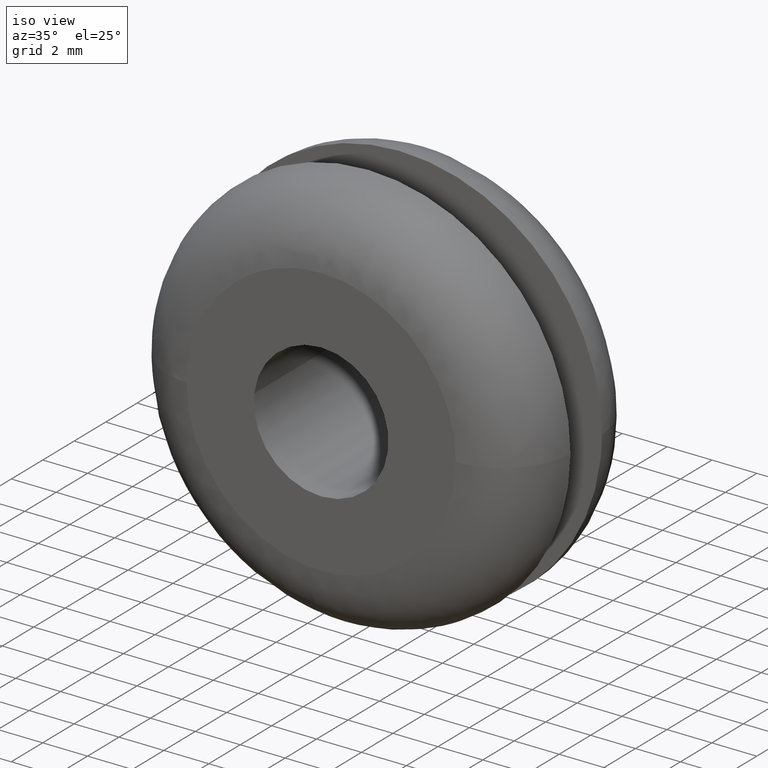
[diagram: clean part render]
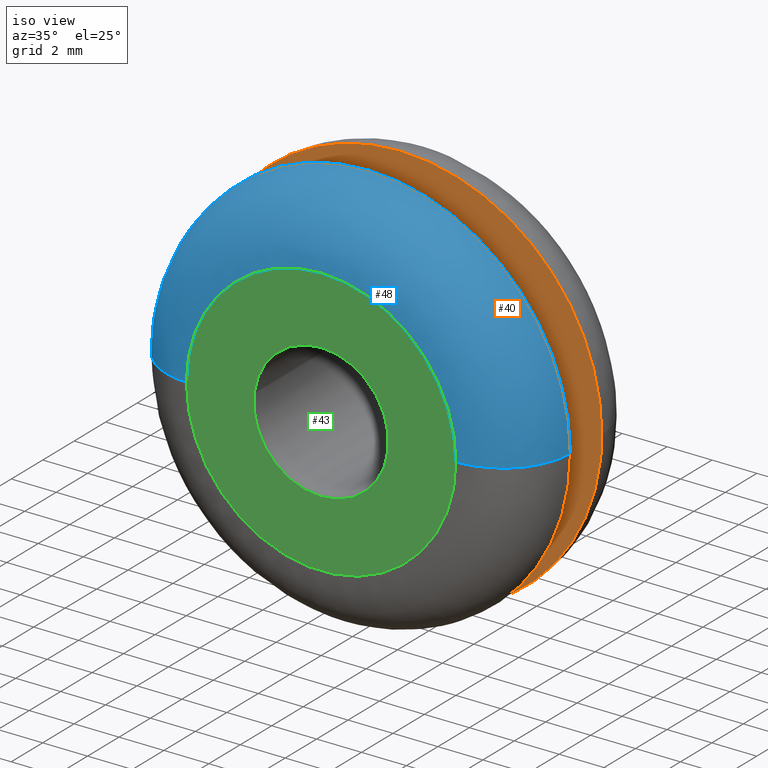
[diagram: same view with three faces highlighted in distinct colors, each labeled with its STEP entity id]
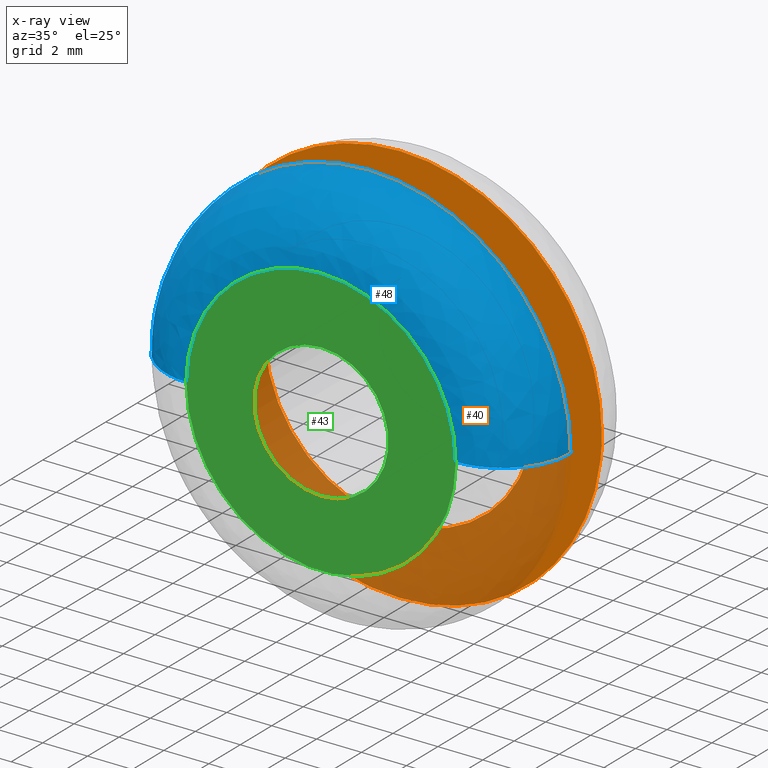
[diagram: x-ray of the same camera — body ghosted, the three highlighted faces saturated]
A machine part, iso view with three faces highlighted in distinct colors.
The next image is the same camera in x-ray (body ghosted, the three faces saturated) — at least one of them is partly hidden behind the body in this view.
Their STEP definitions:

[orange] entity #40 — the highlighted planar face has unit normal (0, 1, 0).
#40=ADVANCED_FACE('',(#53,#54),#52,.F.);
#52=PLANE('',#179);
#53=FACE_OUTER_BOUND('',#180,.T.);
#54=FACE_BOUND('',#181,.T.);
#176=CARTESIAN_POINT('',(-1.09106769926E+001,5.00000000000E+000,-1.08000000000E+001));
#177=DIRECTION('',(0.00000000000E+000,1.00000000000E+000,0.00000000000E+000));
#178=DIRECTION('',(0.00000000000E+000,0.00000000000E+000,1.00000000000E+000));
#179=AXIS2_PLACEMENT_3D('',#176,#177,#178);
#180=EDGE_LOOP('',(#324,#325,#326,#327,#328));
#181=EDGE_LOOP('',(#329,#330,#331));
#324=ORIENTED_EDGE('',*,*,#398,.T.);
#325=ORIENTED_EDGE('',*,*,#399,.T.);
#326=ORIENTED_EDGE('',*,*,#400,.T.);
#327=ORIENTED_EDGE('',*,*,#401,.T.);
#328=ORIENTED_EDGE('',*,*,#402,.T.);
#329=ORIENTED_EDGE('',*,*,#403,.F.);
#330=ORIENTED_EDGE('',*,*,#404,.F.);
#331=ORIENTED_EDGE('',*,*,#405,.F.);
#398=EDGE_CURVE('',#435,#436,#437,.T.);
#399=EDGE_CURVE('',#436,#443,#444,.T.);
#400=EDGE_CURVE('',#443,#450,#451,.T.);
#401=EDGE_CURVE('',#450,#457,#458,.T.);
#402=EDGE_CURVE('',#457,#435,#464,.T.);
#403=EDGE_CURVE('',#470,#471,#472,.T.);
#404=EDGE_CURVE('',#478,#470,#479,.T.);
#405=EDGE_CURVE('',#471,#478,#485,.T.);
#435=VERTEX_POINT('',#686);
#436=VERTEX_POINT('',#687);
#437=CIRCLE('',#691,8.99999999999E+000);
#443=VERTEX_POINT('',#692);
#444=CIRCLE('',#696,8.99999999999E+000);
#450=VERTEX_POINT('',#697);
#451=CIRCLE('',#701,8.99999999999E+000);
#457=VERTEX_POINT('',#702);
#458=CIRCLE('',#706,8.99999999999E+000);
#464=CIRCLE('',#710,8.99999999999E+000);
#470=VERTEX_POINT('',#711);
#471=VERTEX_POINT('',#712);
#472=CIRCLE('',#716,6.00000000000E+000);
#478=VERTEX_POINT('',#717);
#479=CIRCLE('',#721,6.00000000000E+000);
#485=CIRCLE('',#725,6.00000000000E+000);
#686=CARTESIAN_POINT('',(0.00000000000E+000,5.00000000000E+000,-9.00000000000E+000));
#687=CARTESIAN_POINT('',(8.93980539481E+000,4.99999413509E+000,-1.03917250863E+000));
#688=CARTESIAN_POINT('',(-4.23927559723E-012,4.99999706754E+000,-1.01669783703E-011));
#689=DIRECTION('',(-3.65897112517E-007,-1.00000000000E+000,-3.25828545577E-007));
#690=DIRECTION('',(-4.71030621915E-013,-3.25828545577E-007,1.00000000000E+000));
#691=AXIS2_PLACEMENT_3D('',#688,#689,#690);
#692=CARTESIAN_POINT('',(8.99999999998E+000,4.99999445622E+000,9.78850653478E-006));
#693=CARTESIAN_POINT('',(-2.05080397109E-012,4.99999706754E+000,1.00102148792E-011));
#694=DIRECTION('',(-2.90147797382E-007,-1.00000000000E+000,3.25828545244E-007));
#695=DIRECTION('',(-9.93311710536E-001,3.25828545675E-007,1.15463612071E-001));
#696=AXIS2_PLACEMENT_3D('',#693,#694,#695);
#697=CARTESIAN_POINT('',(0.00000000000E+000,5.00000000000E+000,9.00000000000E+000));
#698=CARTESIAN_POINT('',(-2.05080397109E-012,4.99999706754E+000,1.00102148792E-011));
#699=DIRECTION('',(-2.90147797382E-007,-1.00000000000E+000,3.25828545244E-007));
#700=DIRECTION('',(-9.93311710536E-001,3.25828545675E-007,1.15463612071E-001));
#701=AXIS2_PLACEMENT_3D('',#698,#699,#700);
#702=CARTESIAN_POINT('',(-8.99999999999E+000,4.99999411331E+000,3.79724600000E-008));
#703=CARTESIAN_POINT('',(2.84927637040E-012,4.99999705666E+000,8.70414851306E-012));
#704=DIRECTION('',(3.27038295842E-007,-1.00000000000E+000,3.27038294520E-007));
#705=DIRECTION('',(3.16586263378E-013,-3.27038294520E-007,-1.00000000000E+000));
#706=AXIS2_PLACEMENT_3D('',#703,#704,#705);
#707=CARTESIAN_POINT('',(2.85194090566E-012,4.99999705666E+000,-8.70503669148E-012));
#708=DIRECTION('',(3.27038292942E-007,-1.00000000000E+000,-3.27038294710E-007));
#709=DIRECTION('',(1.00000000000E+000,3.27038294322E-007,-4.22012944853E-009));
#710=AXIS2_PLACEMENT_3D('',#707,#708,#709);
#711=CARTESIAN_POINT('',(-5.95805741716E+000,5.00000000000E+000,7.08203229113E-001));
#712=CARTESIAN_POINT('',(-2.99760216649E-015,5.00000000000E+000,-5.99999999999E+000));
#713=CARTESIAN_POINT('',(2.10320649785E-012,5.00000000000E+000,4.62696547743E-012));
#714=DIRECTION('',(-8.03066684532E-017,-1.00000000000E+000,-6.75617347872E-016));
#715=DIRECTION('',(-3.50677820116E-013,6.75617347873E-016,-1.00000000000E+000));
#716=AXIS2_PLACEMENT_3D('',#713,#714,#715);
#717=CARTESIAN_POINT('',(5.95793466535E+000,5.00000000000E+000,-7.09235167920E-001));
#718=CARTESIAN_POINT('',(2.10320649785E-012,5.00000000000E+000,4.62696547743E-012));
#719=DIRECTION('',(-8.03066684532E-017,-1.00000000000E+000,-6.75617347872E-016));
#720=DIRECTION('',(-3.50677820116E-013,6.75617347873E-016,-1.00000000000E+000));
#721=AXIS2_PLACEMENT_3D('',#718,#719,#720);
#722=CARTESIAN_POINT('',(2.10320649785E-012,5.00000000000E+000,4.62696547743E-012));
#723=DIRECTION('',(-8.03066684532E-017,-1.00000000000E+000,-6.75617347872E-016));
#724=DIRECTION('',(-3.50677820116E-013,6.75617347873E-016,-1.00000000000E+000));
#725=AXIS2_PLACEMENT_3D('',#722,#723,#724);

[blue] entity #48 — the highlighted face is a freeform B-spline surface patch.
#48=ADVANCED_FACE('',(#137),#136,.T.);
#136=( BOUNDED_SURFACE() B_SPLINE_SURFACE( 2,2,((#220,#221,#222,#223,#224),(#225,#226,#227,#228,#229),(#230,#231,#232,#233,#234),(#235,#236,#237,#238,#239),(#240,#241,#242,#243,#244)), .UNSPECIFIED.,.F.,.F.,.F.) B_SPLINE_SURFACE_WITH_KNOTS((3,2,3),(3,2,3),(-2.33173204921E-004,1.04711982679E+000,1.57079638809E+000),(0.00000000000E+000,1.57079632679E+000,3.14159265359E+000), .UNSPECIFIED. ) GEOMETRIC_REPRESENTATION_ITEM() RATIONAL_B_SPLINE_SURFACE(((1.00000000000E+000,7.07106781187E-001,1.00000000000E+000,7.07106781187E-001,1.00000000000E+000),(8.65986538968E-001,6.12344954120E-001,8.65986538968E-001,6.12344954120E-001,8.65986538968E-001),(1.00000000000E+000,7.07106781187E-001,1.00000000000E+000,7.07106781187E-001,1.00000000000E+000),(9.32993261640E-001,6.59725862107E-001,9.32993261640E-001,6.59725862107E-001,9.32993261640E-001),(9.32993269484E-001,6.59725867653E-001,9.32993269484E-001,6.59725867653E-001,9.32993269484E-001))) REPRESENTATION_ITEM('') SURFACE() );
#137=FACE_OUTER_BOUND('',#245,.T.);
#220=CARTESIAN_POINT('',(-8.99999991845E+000,3.00069951961E+000,7.40643813226E-014));
#221=CARTESIAN_POINT('',(-8.99999991845E+000,3.00069951961E+000,8.99999991845E+000));
#222=CARTESIAN_POINT('',(-1.58410126141E-013,3.00069951961E+000,8.99999991845E+000));
#223=CARTESIAN_POINT('',(8.99999991845E+000,3.00069951961E+000,8.99999991845E+000));
#224=CARTESIAN_POINT('',(8.99999991845E+000,3.00069951961E+000,7.18600899057E-014));
#225=CARTESIAN_POINT('',(-9.00040385878E+000,1.26833784757E+000,8.53835161358E-014));
#226=CARTESIAN_POINT('',(-9.00040385878E+000,1.26833784757E+000,9.00040385878E+000));
#227=CARTESIAN_POINT('',(-3.62196321123E-013,1.26833784757E+000,9.00040385878E+000));
#228=CARTESIAN_POINT('',(9.00040385878E+000,1.26833784757E+000,9.00040385878E+000));
#229=CARTESIAN_POINT('',(9.00040385878E+000,1.26833784757E+000,8.31791257853E-014));
#230=CARTESIAN_POINT('',(-7.50020192939E+000,4.02040383097E-001,9.08601051667E-014));
#231=CARTESIAN_POINT('',(-7.50020192939E+000,4.02040383097E-001,7.50020192939E+000));
#232=CARTESIAN_POINT('',(-4.64286878610E-013,4.02040383096E-001,7.50020192939E+000));
#233=CARTESIAN_POINT('',(7.50020192939E+000,4.02040383095E-001,7.50020192939E+000));
#234=CARTESIAN_POINT('',(7.50020192939E+000,4.02040383095E-001,8.90231461792E-014));
#235=CARTESIAN_POINT('',(-6.80397244839E+000,-5.04412534093E-008,9.34017381722E-014));
#236=CARTESIAN_POINT('',(-6.80397244839E+000,-5.04412089825E-008,6.80397244839E+000));
#237=CARTESIAN_POINT('',(-5.11666137670E-013,-5.04420093600E-008,6.80397244839E+000));
#238=CARTESIAN_POINT('',(6.80397244839E+000,-5.04428097985E-008,6.80397244839E+000));
#239=CARTESIAN_POINT('',(6.80397244839E+000,-5.04428542304E-008,9.17353005939E-014));
#240=CARTESIAN_POINT('',(-5.99999981178E+000,5.48799077621E-015,9.33032828428E-014));
#241=CARTESIAN_POINT('',(-5.99999981178E+000,4.46732493424E-014,5.99999981178E+000));
#242=CARTESIAN_POINT('',(-5.11764586736E-013,-6.61111727777E-013,5.99999981178E+000));
#243=CARTESIAN_POINT('',(5.99999981178E+000,-1.36694763697E-012,5.99999981178E+000));
#244=CARTESIAN_POINT('',(5.99999981178E+000,-1.40612969281E-012,9.18337552643E-014));
#245=EDGE_LOOP('',(#373,#374,#375,#376,#377,#378,#379));
#373=ORIENTED_EDGE('',*,*,#415,.T.);
#374=ORIENTED_EDGE('',*,*,#414,.T.);
#375=ORIENTED_EDGE('',*,*,#413,.T.);
#376=ORIENTED_EDGE('',*,*,#431,.T.);
#377=ORIENTED_EDGE('',*,*,#421,.F.);
#378=ORIENTED_EDGE('',*,*,#423,.F.);
#379=ORIENTED_EDGE('',*,*,#432,.F.);
#413=EDGE_CURVE('',#541,#533,#542,.T.);
#414=EDGE_CURVE('',#548,#541,#549,.T.);
#415=EDGE_CURVE('',#555,#548,#556,.T.);
#421=EDGE_CURVE('',#596,#597,#598,.T.);
#423=EDGE_CURVE('',#604,#596,#611,.T.);
#431=EDGE_CURVE('',#533,#597,#662,.T.);
#432=EDGE_CURVE('',#555,#604,#668,.T.);
#533=VERTEX_POINT('',#756);
#541=VERTEX_POINT('',#762);
#542=CIRCLE('',#766,9.00000000000E+000);
#548=VERTEX_POINT('',#767);
#549=CIRCLE('',#771,9.00000000000E+000);
#555=VERTEX_POINT('',#772);
#556=CIRCLE('',#776,9.00000000000E+000);
#596=VERTEX_POINT('',#801);
#597=VERTEX_POINT('',#802);
#598=CIRCLE('',#806,6.00000000005E+000);
#604=VERTEX_POINT('',#807);
#611=CIRCLE('',#815,6.00000000005E+000);
#662=(BOUNDED_CURVE() B_SPLINE_CURVE(2,(#839,#840,#841,#842,#843),.UNSPECIFIED.,.F.,.F.) B_SPLINE_CURVE_WITH_KNOTS((3,2,3),(9.80348749226E-006,1.04711982679E+000,1.57079631639E+000),.UNSPECIFIED.) CURVE() GEOMETRIC_REPRESENTATION_ITEM() RATIONAL_B_SPLINE_CURVE((9.99937834535E-001,8.66017628913E-001,1.00000000000E+000,9.32993270815E-001,9.32993269484E-001)) REPRESENTATION_ITEM('') );
#668=(BOUNDED_CURVE() B_SPLINE_CURVE(2,(#844,#845,#846,#847,#848),.UNSPECIFIED.,.F.,.F.) B_SPLINE_CURVE_WITH_KNOTS((3,2,3),(-2.33173204921E-004,1.04711982679E+000,1.57079638809E+000),.UNSPECIFIED.) CURVE() GEOMETRIC_REPRESENTATION_ITEM() RATIONAL_B_SPLINE_CURVE((1.00000000000E+000,8.65986538968E-001,1.00000000000E+000,9.32993261640E-001,9.32993269484E-001)) REPRESENTATION_ITEM('') );
#756=CARTESIAN_POINT('',(-9.00000000000E+000,3.00000345671E+000,-2.87888187171E-009));
#762=CARTESIAN_POINT('',(-8.97809106555E+000,3.00000357739E+000,6.27599250024E-001));
#763=CARTESIAN_POINT('',(8.48210390814E-013,3.00000178869E+000,-3.19921866776E-012));
#764=DIRECTION('',(-1.85335749741E-007,-1.00000000000E+000,1.98743624029E-007));
#765=DIRECTION('',(9.97565673950E-001,-1.98743620919E-007,-6.97332500030E-002));
#766=AXIS2_PLACEMENT_3D('',#763,#764,#765);
#767=CARTESIAN_POINT('',(0.00000000000E+000,3.00000000000E+000,9.00000000000E+000));
#768=CARTESIAN_POINT('',(1.27808874595E-012,3.00000178869E+000,3.21698223615E-012));
#769=DIRECTION('',(-2.13121466762E-007,-1.00000000000E+000,-1.98743620820E-007));
#770=DIRECTION('',(1.42009860661E-013,1.98743620820E-007,-1.00000000000E+000));
#771=AXIS2_PLACEMENT_3D('',#768,#769,#770);
#772=CARTESIAN_POINT('',(8.99999999547E+000,3.00000361186E+000,-2.85210571918E-004));
#773=CARTESIAN_POINT('',(-1.32249766693E-012,3.00000181725E+000,5.03064256918E-012));
#774=DIRECTION('',(1.99394722115E-007,-1.00000000000E+000,-2.01916139001E-007));
#775=DIRECTION('',(-9.99921052610E-001,-2.01916131617E-007,1.25653709912E-002));
#776=AXIS2_PLACEMENT_3D('',#773,#774,#775);
#801=CARTESIAN_POINT('',(7.34764024889E-016,1.03522541672E-015,6.00000000011E+000));
#802=CARTESIAN_POINT('',(-6.00000000007E+000,-1.48521290596E-016,5.34352470276E-009));
#803=CARTESIAN_POINT('',(-1.16613385615E-011,-1.48521291639E-016,5.46904743715E-011));
#804=DIRECTION('',(-1.42120361931E-032,-1.00000000000E+000,1.97291118058E-016));
#805=DIRECTION('',(1.94311233772E-012,1.97291118058E-016,1.00000000000E+000));
#806=AXIS2_PLACEMENT_3D('',#803,#804,#805);
#807=CARTESIAN_POINT('',(6.00000000004E+000,-1.48521291988E-016,-1.71602753426E-009));
#812=CARTESIAN_POINT('',(-1.16613385615E-011,-1.48521291639E-016,5.46904743715E-011));
#813=DIRECTION('',(-1.42120361931E-032,-1.00000000000E+000,1.97291118058E-016));
#814=DIRECTION('',(1.94311233772E-012,1.97291118058E-016,1.00000000000E+000));
#815=AXIS2_PLACEMENT_3D('',#812,#813,#814);
#839=CARTESIAN_POINT('',(-9.00000000000E+000,3.00000343065E+000,7.40689295112E-014));
#840=CARTESIAN_POINT('',(-9.00000198051E+000,1.26810578140E+000,8.53849832197E-014));
#841=CARTESIAN_POINT('',(-7.50020192939E+000,4.02040383097E-001,9.08601051667E-014));
#842=CARTESIAN_POINT('',(-6.80397255057E+000,8.56159753405E-009,9.34017377992E-014));
#843=CARTESIAN_POINT('',(-6.00000003195E+000,-2.46381711019E-016,9.33032828697E-014));
#844=CARTESIAN_POINT('',(8.99999991845E+000,3.00069951961E+000,7.18600899057E-014));
#845=CARTESIAN_POINT('',(9.00040385878E+000,1.26833784757E+000,8.31791257853E-014));
#846=CARTESIAN_POINT('',(7.50020192939E+000,4.02040383095E-001,8.90231461792E-014));
#847=CARTESIAN_POINT('',(6.80397244839E+000,-5.04428542304E-008,9.17353005939E-014));
#848=CARTESIAN_POINT('',(5.99999981178E+000,-1.40612969281E-012,9.18337552643E-014));

[green] entity #43 — the highlighted planar face has unit normal (0, 1, 0).
#43=ADVANCED_FACE('',(#86,#87),#85,.F.);
#85=PLANE('',#197);
#86=FACE_OUTER_BOUND('',#198,.T.);
#87=FACE_BOUND('',#199,.T.);
#194=CARTESIAN_POINT('',(-1.24707658146E+001,-9.41670200000E-016,-1.38000000001E+001));
#195=DIRECTION('',(0.00000000000E+000,1.00000000000E+000,0.00000000000E+000));
#196=DIRECTION('',(0.00000000000E+000,0.00000000000E+000,1.00000000000E+000));
#197=AXIS2_PLACEMENT_3D('',#194,#195,#196);
#198=EDGE_LOOP('',(#347,#348,#349));
#199=EDGE_LOOP('',(#350,#351,#352));
#347=ORIENTED_EDGE('',*,*,#421,.T.);
#348=ORIENTED_EDGE('',*,*,#422,.T.);
#349=ORIENTED_EDGE('',*,*,#423,.T.);
#350=ORIENTED_EDGE('',*,*,#424,.F.);
#351=ORIENTED_EDGE('',*,*,#425,.F.);
#352=ORIENTED_EDGE('',*,*,#426,.F.);
#421=EDGE_CURVE('',#596,#597,#598,.T.);
#422=EDGE_CURVE('',#597,#604,#605,.T.);
#423=EDGE_CURVE('',#604,#596,#611,.T.);
#424=EDGE_CURVE('',#617,#618,#619,.T.);
#425=EDGE_CURVE('',#625,#617,#626,.T.);
#426=EDGE_CURVE('',#618,#625,#632,.T.);
#596=VERTEX_POINT('',#801);
#597=VERTEX_POINT('',#802);
#598=CIRCLE('',#806,6.00000000005E+000);
#604=VERTEX_POINT('',#807);
#605=CIRCLE('',#811,6.00000000005E+000);
#611=CIRCLE('',#815,6.00000000005E+000);
#617=VERTEX_POINT('',#816);
#618=VERTEX_POINT('',#817);
#619=CIRCLE('',#821,2.99999999999E+000);
#625=VERTEX_POINT('',#822);
#626=CIRCLE('',#826,2.99999999999E+000);
#632=CIRCLE('',#830,2.99999999999E+000);
#801=CARTESIAN_POINT('',(7.34764024889E-016,1.03522541672E-015,6.00000000011E+000));
#802=CARTESIAN_POINT('',(-6.00000000007E+000,-1.48521290596E-016,5.34352470276E-009));
#803=CARTESIAN_POINT('',(-1.16613385615E-011,-1.48521291639E-016,5.46904743715E-011));
#804=DIRECTION('',(-1.42120361931E-032,-1.00000000000E+000,1.97291118058E-016));
#805=DIRECTION('',(1.94311233772E-012,1.97291118058E-016,1.00000000000E+000));
#806=AXIS2_PLACEMENT_3D('',#803,#804,#805);
#807=CARTESIAN_POINT('',(6.00000000004E+000,-1.48521291988E-016,-1.71602753426E-009));
#808=CARTESIAN_POINT('',(-1.16613385615E-011,-1.48521291639E-016,5.46904743715E-011));
#809=DIRECTION('',(-1.42120361931E-032,-1.00000000000E+000,1.97291118058E-016));
#810=DIRECTION('',(1.94311233772E-012,1.97291118058E-016,1.00000000000E+000));
#811=AXIS2_PLACEMENT_3D('',#808,#809,#810);
#812=CARTESIAN_POINT('',(-1.16613385615E-011,-1.48521291639E-016,5.46904743715E-011));
#813=DIRECTION('',(-1.42120361931E-032,-1.00000000000E+000,1.97291118058E-016));
#814=DIRECTION('',(1.94311233772E-012,1.97291118058E-016,1.00000000000E+000));
#815=AXIS2_PLACEMENT_3D('',#812,#813,#814);
#816=CARTESIAN_POINT('',(-2.97902870857E+000,-8.51761570636E-016,3.54101614556E-001));
#817=CARTESIAN_POINT('',(-6.10622663544E-016,-3.28915840641E-015,-2.99999999998E+000));
#818=CARTESIAN_POINT('',(3.50297568730E-012,-7.76608020262E-016,7.70561392471E-012));
#819=DIRECTION('',(1.24778790738E-016,-1.00000000000E+000,8.37516795386E-016));
#820=DIRECTION('',(-1.16751053270E-012,-8.37516795386E-016,-1.00000000000E+000));
#821=AXIS2_PLACEMENT_3D('',#818,#819,#820);
#822=CARTESIAN_POINT('',(2.97896733271E+000,-7.01894261053E-016,-3.54617583606E-001));
#823=CARTESIAN_POINT('',(3.50297568730E-012,-7.76608020262E-016,7.70561392471E-012));
#824=DIRECTION('',(1.24778790738E-016,-1.00000000000E+000,8.37516795386E-016));
#825=DIRECTION('',(-1.16751053270E-012,-8.37516795386E-016,-1.00000000000E+000));
#826=AXIS2_PLACEMENT_3D('',#823,#824,#825);
#827=CARTESIAN_POINT('',(3.50297568730E-012,-7.76608020262E-016,7.70561392471E-012));
#828=DIRECTION('',(1.24778790738E-016,-1.00000000000E+000,8.37516795386E-016));
#829=DIRECTION('',(-1.16751053270E-012,-8.37516795386E-016,-1.00000000000E+000));
#830=AXIS2_PLACEMENT_3D('',#827,#828,#829);